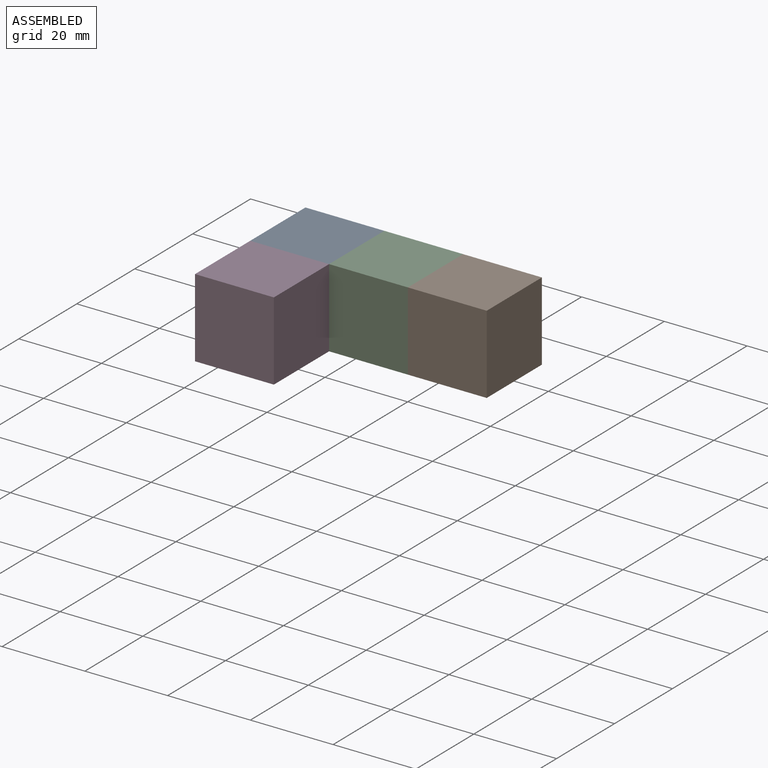
[diagram: assembled view]
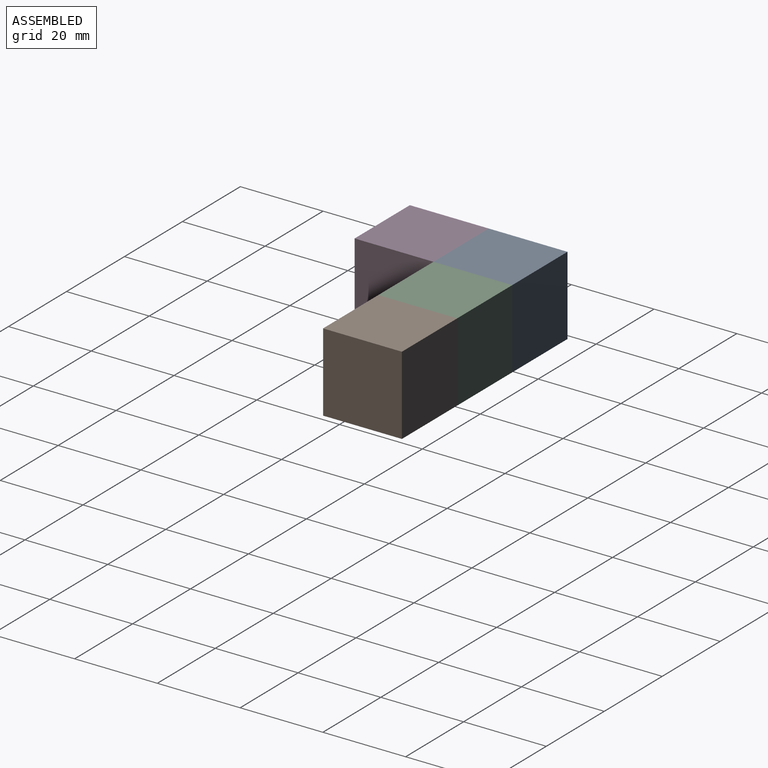
[diagram: assembled view, second angle]
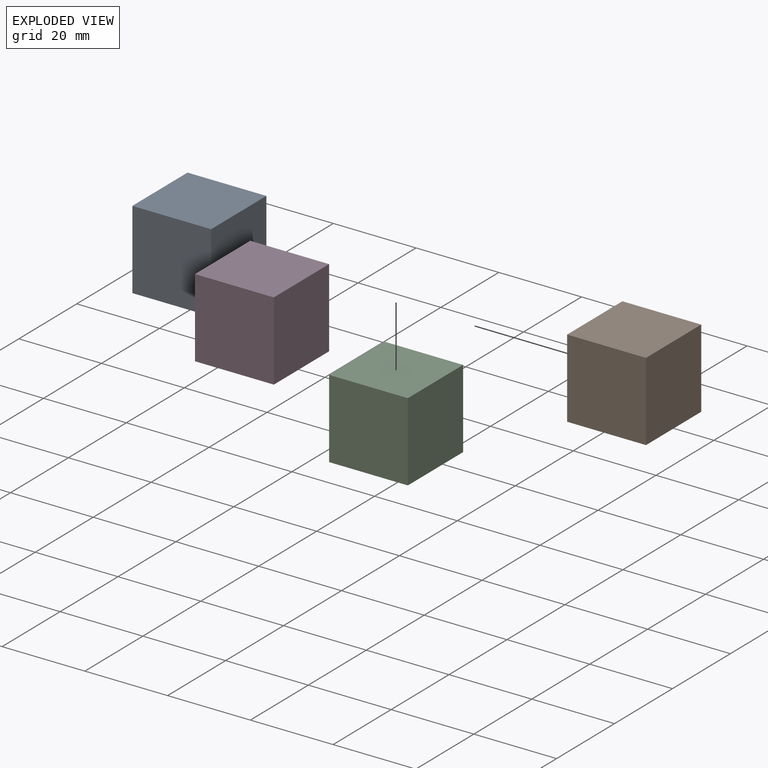
[diagram: exploded view]
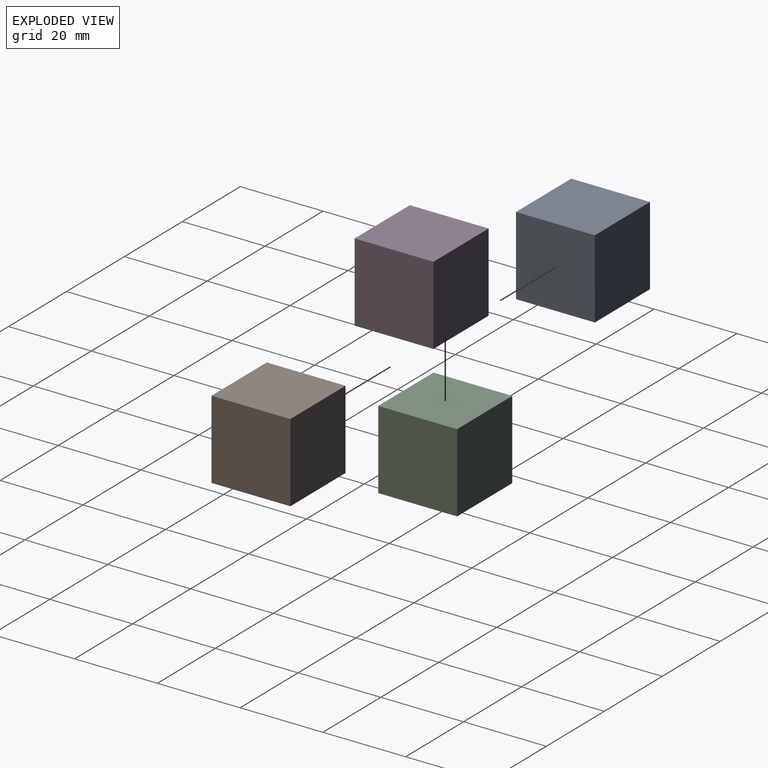
[diagram: exploded view, second angle]
ASSEMBLY  parts=4 mates=3
PART A: 6 faces, bbox 19.1x19.1x19.1 mm
  f0: plane 19.05x19.05mm, normal (1,0,0), area 362.9mm2, adj f1,f3,f4,f5
  f1: plane 19.05x19.05mm, normal (0,1,0), area 362.9mm2, adj f0,f2,f4,f5
  f2: plane 19.05x19.05mm, normal (-1,0,0), area 362.9mm2, adj f1,f3,f4,f5
  f3: plane 19.05x19.05mm, normal (0,-1,0), area 362.9mm2, adj f0,f2,f4,f5
  f4: plane 19.05x19.05mm, normal (0,0,1), area 362.9mm2, adj f0,f1,f2,f3
  f5: plane 19.05x19.05mm, normal (0,0,-1), area 362.9mm2, adj f0,f1,f2,f3
PART B: same geometry as A
PART C: same geometry as A
PART D: same geometry as A
PLACE A t=(-44.76,-44.43,-4.76)mm
PLACE B rot(axis=(0,0,1),180deg) t=(-6.66,-44.43,-4.76)mm
PLACE C rot(axis=(-0.58,0.58,0.58),120deg) t=(-25.71,-53.95,4.77)mm
PLACE D t=(-44.76,-63.48,-4.76)mm
MATE fastened C.f1 <-> A.f0  axis (-1,0,0) through (-35.23,-44.43,4.77)mm
MATE fastened A.f3 <-> D.f1  axis (0,-1,0) through (-44.76,-53.95,4.77)mm
MATE fastened C.f3 <-> B.f0  axis (1,0,0) through (-16.18,-44.43,4.77)mm
